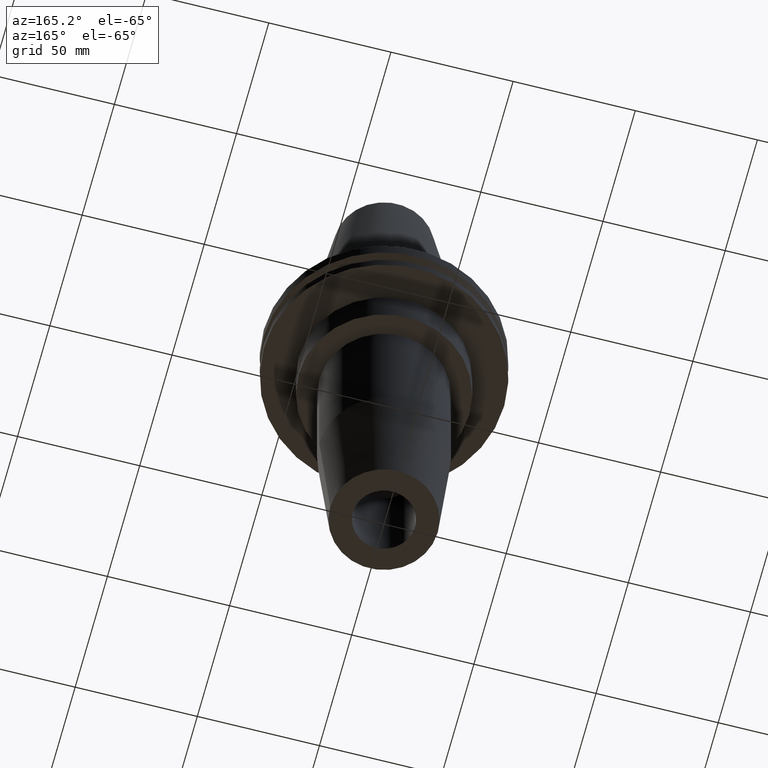
[diagram: clean part render]
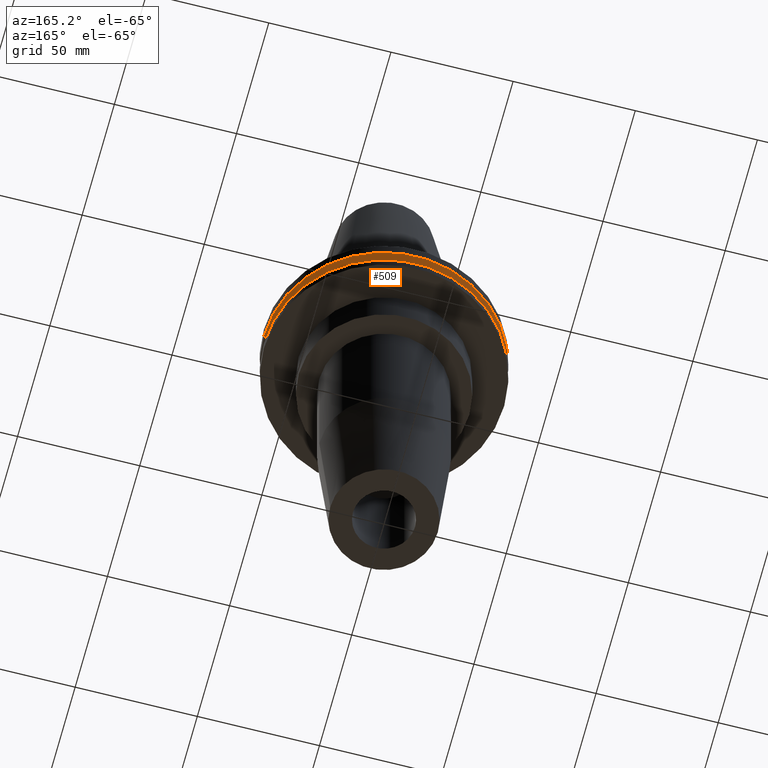
[diagram: same view with one face highlighted and labeled with its STEP entity id]
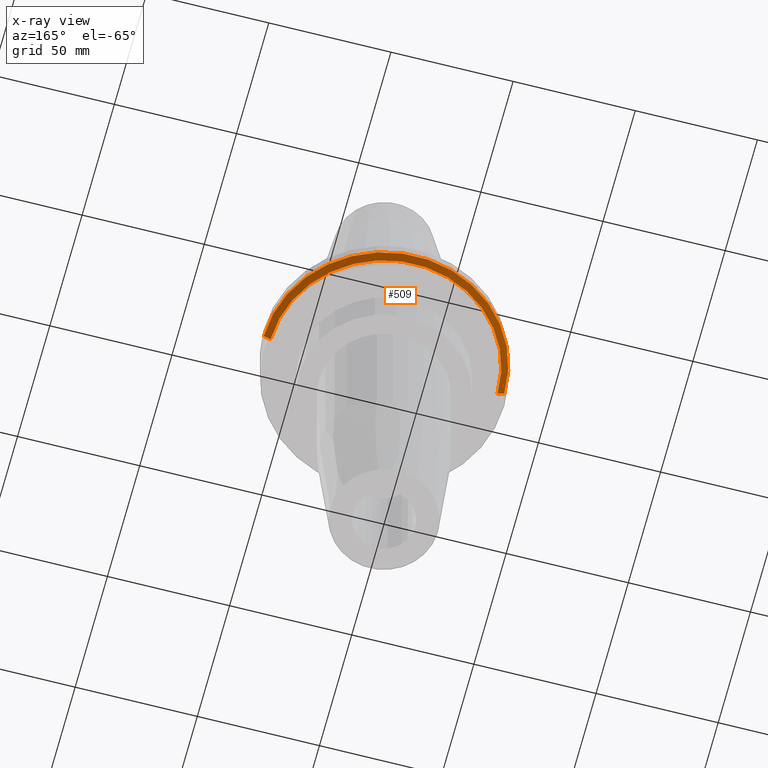
[diagram: x-ray of the same camera — body ghosted, the highlighted face saturated]
A machine part, auxiliary view. The second image highlights one B-rep face of the part: STEP entity #509.
The next image is the same camera in x-ray: the body ghosted, the highlighted face saturated — about 0% of this face is hidden behind the body in this view.
In plain terms, the highlighted conical surface has half-angle 60 deg.
Its self-contained STEP definition (entity closure, byte-faithful):
#2 = VERTEX_POINT ( 'NONE', #526 ) ;
#39 = DIRECTION ( 'NONE',  ( -0.8660254037844273833, 1.060575238724893110E-16, 0.5000000000000195399 ) ) ;
#66 = VERTEX_POINT ( 'NONE', #729 ) ;
#70 = DIRECTION ( 'NONE',  ( -0.000000000000000000, -0.000000000000000000, 1.000000000000000000 ) ) ;
#87 = CARTESIAN_POINT ( 'NONE',  ( 0.000000000000000000, 0.000000000000000000, -7.602389855251287187 ) ) ;
#93 = DIRECTION ( 'NONE',  ( 1.000000000000000000, 0.000000000000000000, 0.000000000000000000 ) ) ;
#125 = CIRCLE ( 'NONE', #717, 49.21500000000000341 ) ;
#142 = FACE_OUTER_BOUND ( 'NONE', #523, .T. ) ;
#153 = VECTOR ( 'NONE', #39, 1000.000000000000000 ) ;
#165 = EDGE_CURVE ( 'NONE', #2, #66, #687, .T. ) ;
#198 = DIRECTION ( 'NONE',  ( 1.000000000000000000, 0.000000000000000000, 0.000000000000000000 ) ) ;
#262 = CIRCLE ( 'NONE', #456, 46.43919780457007818 ) ;
#284 = CARTESIAN_POINT ( 'NONE',  ( 49.21500000000000341, 0.000000000000000000, -7.602389855251287187 ) ) ;
#289 = AXIS2_PLACEMENT_3D ( 'NONE', #469, #412, #725 ) ;
#291 = DIRECTION ( 'NONE',  ( 0.8660254037844273833, 0.000000000000000000, 0.5000000000000195399 ) ) ;
#294 = LINE ( 'NONE', #487, #555 ) ;
#361 = CARTESIAN_POINT ( 'NONE',  ( 46.43919780457007818, 0.000000000000000000, -9.204999999999991189 ) ) ;
#392 = ORIENTED_EDGE ( 'NONE', *, *, #566, .F. ) ;
#395 = ORIENTED_EDGE ( 'NONE', *, *, #480, .T. ) ;
#400 = CONICAL_SURFACE ( 'NONE', #289, 46.43919780457007818, 1.047197551196575205 ) ;
#412 = DIRECTION ( 'NONE',  ( -0.000000000000000000, -0.000000000000000000, 1.000000000000000000 ) ) ;
#456 = AXIS2_PLACEMENT_3D ( 'NONE', #728, #70, #198 ) ;
#460 = ORIENTED_EDGE ( 'NONE', *, *, #776, .F. ) ;
#469 = CARTESIAN_POINT ( 'NONE',  ( 0.000000000000000000, 0.000000000000000000, -9.204999999999991189 ) ) ;
#480 = EDGE_CURVE ( 'NONE', #563, #2, #262, .T. ) ;
#487 = CARTESIAN_POINT ( 'NONE',  ( 46.43919780457007818, 0.000000000000000000, -9.204999999999991189 ) ) ;
#509 = ADVANCED_FACE ( 'NONE', ( #142 ), #400, .T. ) ;
#523 = EDGE_LOOP ( 'NONE', ( #395, #646, #460, #392 ) ) ;
#526 = CARTESIAN_POINT ( 'NONE',  ( -46.43919780457007818, 5.857130358318727293E-15, -9.204999999999991189 ) ) ;
#555 = VECTOR ( 'NONE', #291, 1000.000000000000000 ) ;
#563 = VERTEX_POINT ( 'NONE', #361 ) ;
#566 = EDGE_CURVE ( 'NONE', #563, #765, #294, .T. ) ;
#630 = CARTESIAN_POINT ( 'NONE',  ( -46.43919780457007818, 5.687161494633754392E-15, -9.204999999999991189 ) ) ;
#646 = ORIENTED_EDGE ( 'NONE', *, *, #165, .T. ) ;
#685 = DIRECTION ( 'NONE',  ( -0.000000000000000000, -0.000000000000000000, 1.000000000000000000 ) ) ;
#687 = LINE ( 'NONE', #630, #153 ) ;
#717 = AXIS2_PLACEMENT_3D ( 'NONE', #87, #685, #93 ) ;
#725 = DIRECTION ( 'NONE',  ( 1.000000000000000000, 0.000000000000000000, 0.000000000000000000 ) ) ;
#728 = CARTESIAN_POINT ( 'NONE',  ( 0.000000000000000000, 0.000000000000000000, -9.204999999999991189 ) ) ;
#729 = CARTESIAN_POINT ( 'NONE',  ( -49.21500000000000341, 6.027099222003699404E-15, -7.602389855251287187 ) ) ;
#765 = VERTEX_POINT ( 'NONE', #284 ) ;
#776 = EDGE_CURVE ( 'NONE', #765, #66, #125, .T. ) ;